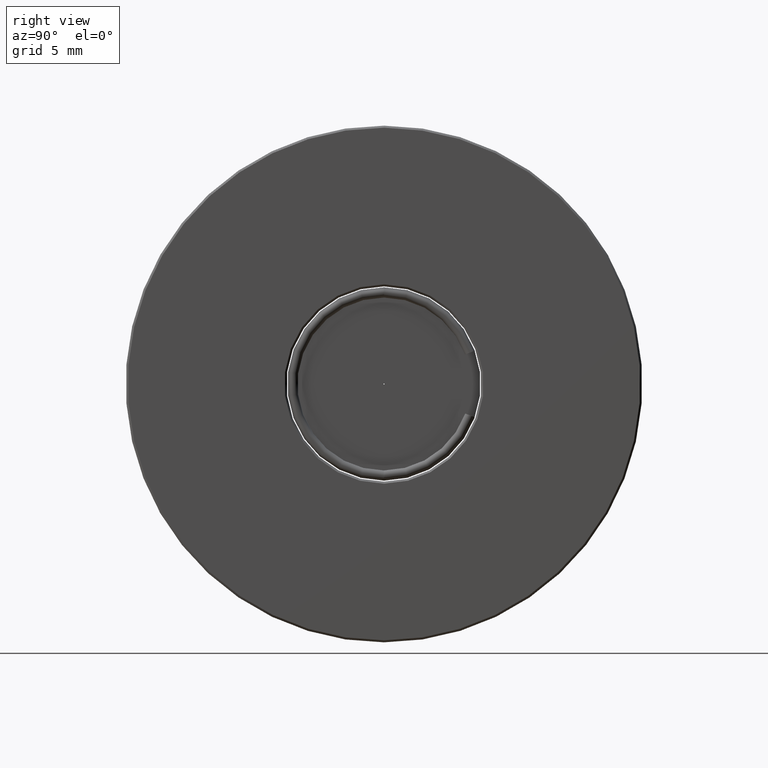
[diagram: clean part render]
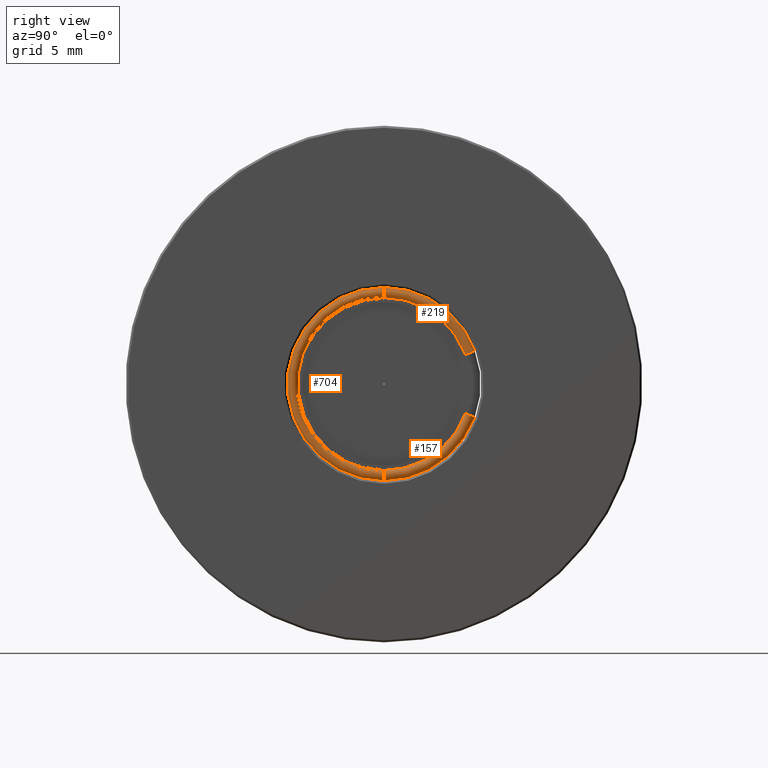
[diagram: same view with one multi-face feature highlighted, each face labeled with its STEP entity id]
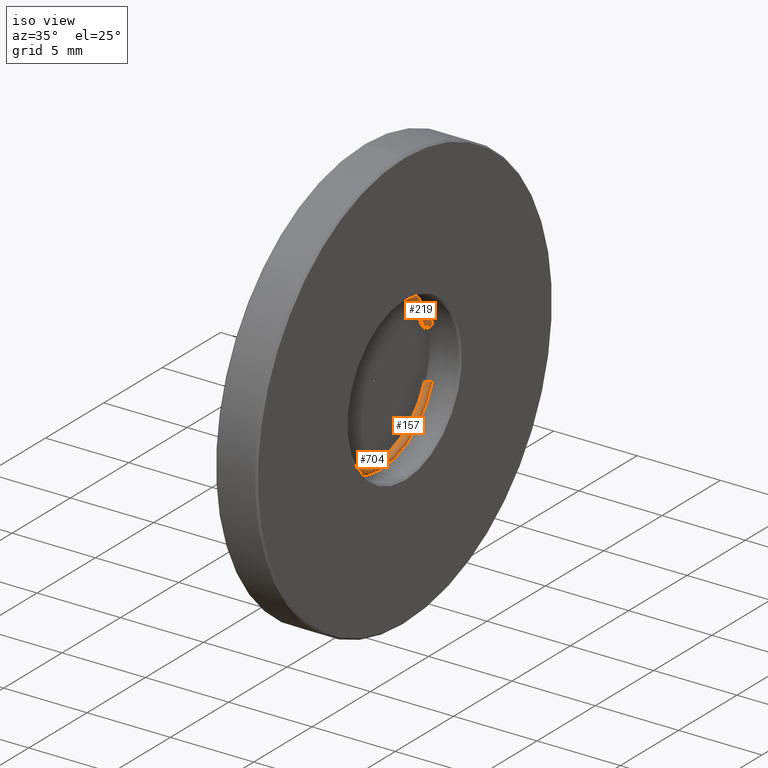
[diagram: same view with one multi-face feature highlighted, each face labeled with its STEP entity id]
A machine part, right view. The highlighted faces form ONE feature: a constant-radius fillet chain: 3 tangent blend faces with common blend radius 0.25 mm. The faces share edges in the B-rep.
A second angle (iso view) of the same feature is appended — it is thin or edge-on in the first view.
Their STEP definitions:
[1] entity #704 (Torus):
#5 = CARTESIAN_POINT ( 'NONE',  ( -4.034863851253239986, 1.436758841085141514, 25.39999999999998437 ) ) ;
#18 = CARTESIAN_POINT ( 'NONE',  ( -4.034863851253239986, 1.436758841085141514, 25.39999999999998437 ) ) ;
#31 = AXIS2_PLACEMENT_3D ( 'NONE', #18, #575, #694 ) ;
#39 = ORIENTED_EDGE ( 'NONE', *, *, #246, .T. ) ;
#70 = DIRECTION ( 'NONE',  ( 3.061276722312011406E-15, 1.000000000000000000, 0.0000000000000000000 ) ) ;
#83 = VERTEX_POINT ( 'NONE', #330 ) ;
#98 = DIRECTION ( 'NONE',  ( 2.921639538487253472E-15, 1.000000000000000000, 0.0000000000000000000 ) ) ;
#105 = VERTEX_POINT ( 'NONE', #568 ) ;
#114 = ORIENTED_EDGE ( 'NONE', *, *, #624, .F. ) ;
#131 = CIRCLE ( 'NONE', #606, 4.750000000000000888 ) ;
#215 = CARTESIAN_POINT ( 'NONE',  ( -4.034863851253246203, 1.436758840772518919, 20.64999999999998437 ) ) ;
#223 = ORIENTED_EDGE ( 'NONE', *, *, #429, .F. ) ;
#238 = DIRECTION ( 'NONE',  ( 2.997602166400237614E-15, 1.000000000000000000, -6.581539236536173561E-11 ) ) ;
#246 = EDGE_CURVE ( 'NONE', #105, #780, #131, .T. ) ;
#249 = CIRCLE ( 'NONE', #318, 0.2500000000000002220 ) ;
#255 = DIRECTION ( 'NONE',  ( 1.000000000000000000, -2.997602166487921476E-15, -1.332267629309052594E-15 ) ) ;
#272 = DIRECTION ( 'NONE',  ( 1.000000000000000000, -2.997602166487921476E-15, -1.332267629309052594E-15 ) ) ;
#318 = AXIS2_PLACEMENT_3D ( 'NONE', #372, #238, #799 ) ;
#330 = CARTESIAN_POINT ( 'NONE',  ( -4.034863851253237321, 1.436758841364856876, 29.64999999999998437 ) ) ;
#345 = FACE_OUTER_BOUND ( 'NONE', #689, .T. ) ;
#366 = TOROIDAL_SURFACE ( 'NONE', #31, 4.500000000000001776, 0.2499999999999994726 ) ;
#372 = CARTESIAN_POINT ( 'NONE',  ( -4.034863851253245315, 1.436758841381310825, 29.89999999999998437 ) ) ;
#429 = EDGE_CURVE ( 'NONE', #105, #83, #249, .T. ) ;
#453 = ORIENTED_EDGE ( 'NONE', *, *, #459, .T. ) ;
#459 = EDGE_CURVE ( 'NONE', #780, #465, #641, .T. ) ;
#465 = VERTEX_POINT ( 'NONE', #668 ) ;
#531 = CIRCLE ( 'NONE', #533, 4.250000000000001776 ) ;
#533 = AXIS2_PLACEMENT_3D ( 'NONE', #5, #255, #70 ) ;
#564 = AXIS2_PLACEMENT_3D ( 'NONE', #608, #737, #672 ) ;
#568 = CARTESIAN_POINT ( 'NONE',  ( -4.034863851253234657, 1.436758841397764552, 30.14999999999998437 ) ) ;
#575 = DIRECTION ( 'NONE',  ( 1.000000000000000000, -2.997602166487921476E-15, -1.332267629309052594E-15 ) ) ;
#606 = AXIS2_PLACEMENT_3D ( 'NONE', #711, #272, #98 ) ;
#608 = CARTESIAN_POINT ( 'NONE',  ( -4.034863851253234657, 1.436758840788972647, 20.89999999999998437 ) ) ;
#624 = EDGE_CURVE ( 'NONE', #83, #465, #531, .T. ) ;
#641 = CIRCLE ( 'NONE', #564, 0.2500000000000002220 ) ;
#668 = CARTESIAN_POINT ( 'NONE',  ( -4.034863851253239986, 1.436758840805426596, 21.14999999999998437 ) ) ;
#672 = DIRECTION ( 'NONE',  ( 0.0000000000000000000, -6.581540867855999654E-11, -1.000000000000000000 ) ) ;
#689 = EDGE_LOOP ( 'NONE', ( #223, #39, #453, #114 ) ) ;
#694 = DIRECTION ( 'NONE',  ( -1.332267629506340790E-15, -6.581527172670668233E-11, -1.000000000000000000 ) ) ;
#704 = ADVANCED_FACE ( 'NONE', ( #345 ), #366, .T. ) ;
#711 = CARTESIAN_POINT ( 'NONE',  ( -4.034863851253239986, 1.436758841085141514, 25.39999999999998437 ) ) ;
#737 = DIRECTION ( 'NONE',  ( -2.997602166400238009E-15, -1.000000000000000000, 6.581526990068181500E-11 ) ) ;
#780 = VERTEX_POINT ( 'NONE', #215 ) ;
#799 = DIRECTION ( 'NONE',  ( 0.0000000000000000000, 6.581540867855999654E-11, 1.000000000000000000 ) ) ;
[2] entity #219 (Torus):
#44 = CARTESIAN_POINT ( 'NONE',  ( -4.034863851253239986, 1.436758841085141514, 25.39999999999998437 ) ) ;
#73 = AXIS2_PLACEMENT_3D ( 'NONE', #646, #413, #404 ) ;
#83 = VERTEX_POINT ( 'NONE', #330 ) ;
#105 = VERTEX_POINT ( 'NONE', #568 ) ;
#110 = EDGE_CURVE ( 'NONE', #635, #408, #190, .T. ) ;
#143 = CARTESIAN_POINT ( 'NONE',  ( -4.034863851253261302, 5.665375634723053722, 26.93909064468709857 ) ) ;
#154 = CARTESIAN_POINT ( 'NONE',  ( -4.034863851253239986, 1.436758841085141514, 25.39999999999998437 ) ) ;
#155 = TOROIDAL_SURFACE ( 'NONE', #285, 4.500000000000001776, 0.2499999999999994726 ) ;
#163 = CIRCLE ( 'NONE', #73, 4.750000000000000888 ) ;
#166 = AXIS2_PLACEMENT_3D ( 'NONE', #44, #421, #544 ) ;
#176 = FACE_OUTER_BOUND ( 'NONE', #250, .T. ) ;
#190 = CIRCLE ( 'NONE', #257, 0.2500000000000000000 ) ;
#219 = ADVANCED_FACE ( 'NONE', ( #176 ), #155, .T. ) ;
#238 = DIRECTION ( 'NONE',  ( 2.997602166400237614E-15, 1.000000000000000000, -6.581539236536173561E-11 ) ) ;
#249 = CIRCLE ( 'NONE', #318, 0.2500000000000002220 ) ;
#250 = EDGE_LOOP ( 'NONE', ( #311, #683, #673, #256 ) ) ;
#256 = ORIENTED_EDGE ( 'NONE', *, *, #361, .F. ) ;
#257 = AXIS2_PLACEMENT_3D ( 'NONE', #143, #753, #520 ) ;
#285 = AXIS2_PLACEMENT_3D ( 'NONE', #154, #341, #340 ) ;
#297 = CARTESIAN_POINT ( 'NONE',  ( -4.034863851253226663, 5.430452479520951670, 26.85358560887114621 ) ) ;
#311 = ORIENTED_EDGE ( 'NONE', *, *, #110, .F. ) ;
#318 = AXIS2_PLACEMENT_3D ( 'NONE', #372, #238, #799 ) ;
#330 = CARTESIAN_POINT ( 'NONE',  ( -4.034863851253237321, 1.436758841364856876, 29.64999999999998437 ) ) ;
#340 = DIRECTION ( 'NONE',  ( -1.332267629506340790E-15, -6.581527172670668233E-11, -1.000000000000000000 ) ) ;
#341 = DIRECTION ( 'NONE',  ( 1.000000000000000000, -2.997602166487921476E-15, -1.332267629309052594E-15 ) ) ;
#361 = EDGE_CURVE ( 'NONE', #408, #83, #451, .T. ) ;
#372 = CARTESIAN_POINT ( 'NONE',  ( -4.034863851253245315, 1.436758841381310825, 29.89999999999998437 ) ) ;
#404 = DIRECTION ( 'NONE',  ( 2.921639538487253472E-15, 1.000000000000000000, 0.0000000000000000000 ) ) ;
#408 = VERTEX_POINT ( 'NONE', #297 ) ;
#413 = DIRECTION ( 'NONE',  ( 1.000000000000000000, -2.997602166487921476E-15, -1.332267629309052594E-15 ) ) ;
#421 = DIRECTION ( 'NONE',  ( 1.000000000000000000, -2.997602166487921476E-15, -1.332267629309052594E-15 ) ) ;
#429 = EDGE_CURVE ( 'NONE', #105, #83, #249, .T. ) ;
#439 = CARTESIAN_POINT ( 'NONE',  ( -4.034863851253225775, 5.900298789925161103, 27.02459568050305094 ) ) ;
#451 = CIRCLE ( 'NONE', #166, 4.250000000000001776 ) ;
#520 = DIRECTION ( 'NONE',  ( 3.469446951953614189E-15, -0.9396926208084209753, -0.3420201432638159122 ) ) ;
#544 = DIRECTION ( 'NONE',  ( 3.061276722312011406E-15, 1.000000000000000000, 0.0000000000000000000 ) ) ;
#568 = CARTESIAN_POINT ( 'NONE',  ( -4.034863851253234657, 1.436758841397764552, 30.14999999999998437 ) ) ;
#635 = VERTEX_POINT ( 'NONE', #439 ) ;
#646 = CARTESIAN_POINT ( 'NONE',  ( -4.034863851253239986, 1.436758841085141514, 25.39999999999998437 ) ) ;
#673 = ORIENTED_EDGE ( 'NONE', *, *, #429, .T. ) ;
#683 = ORIENTED_EDGE ( 'NONE', *, *, #729, .T. ) ;
#729 = EDGE_CURVE ( 'NONE', #635, #105, #163, .T. ) ;
#753 = DIRECTION ( 'NONE',  ( -1.054662389422715826E-17, 0.3420201432638126371, -0.9396926208084220855 ) ) ;
#799 = DIRECTION ( 'NONE',  ( 0.0000000000000000000, 6.581540867855999654E-11, 1.000000000000000000 ) ) ;
[3] entity #157 (Torus):
#9 = AXIS2_PLACEMENT_3D ( 'NONE', #203, #199, #515 ) ;
#35 = CIRCLE ( 'NONE', #755, 0.2500000000000002220 ) ;
#42 = DIRECTION ( 'NONE',  ( 1.000000000000000000, -2.997602166487921476E-15, -1.332267629309052594E-15 ) ) ;
#96 = ORIENTED_EDGE ( 'NONE', *, *, #459, .F. ) ;
#126 = EDGE_CURVE ( 'NONE', #156, #159, #35, .T. ) ;
#156 = VERTEX_POINT ( 'NONE', #634 ) ;
#157 = ADVANCED_FACE ( 'NONE', ( #392 ), #560, .T. ) ;
#159 = VERTEX_POINT ( 'NONE', #690 ) ;
#177 = DIRECTION ( 'NONE',  ( 2.921639538487253472E-15, 1.000000000000000000, 0.0000000000000000000 ) ) ;
#178 = CARTESIAN_POINT ( 'NONE',  ( -4.034863851253239986, 1.436758841085141514, 25.39999999999998437 ) ) ;
#199 = DIRECTION ( 'NONE',  ( 1.000000000000000000, -2.997602166487921476E-15, -1.332267629309052594E-15 ) ) ;
#203 = CARTESIAN_POINT ( 'NONE',  ( -4.034863851253239986, 1.436758841085141514, 25.39999999999998437 ) ) ;
#215 = CARTESIAN_POINT ( 'NONE',  ( -4.034863851253246203, 1.436758840772518919, 20.64999999999998437 ) ) ;
#244 = EDGE_LOOP ( 'NONE', ( #96, #545, #759, #371 ) ) ;
#287 = CARTESIAN_POINT ( 'NONE',  ( -4.034863851253239986, 1.436758841085141514, 25.39999999999998437 ) ) ;
#302 = AXIS2_PLACEMENT_3D ( 'NONE', #178, #42, #177 ) ;
#337 = EDGE_CURVE ( 'NONE', #780, #156, #615, .T. ) ;
#371 = ORIENTED_EDGE ( 'NONE', *, *, #772, .F. ) ;
#384 = CARTESIAN_POINT ( 'NONE',  ( -4.034863851253261302, 5.665375634520459336, 23.86090935475617059 ) ) ;
#392 = FACE_OUTER_BOUND ( 'NONE', #244, .T. ) ;
#459 = EDGE_CURVE ( 'NONE', #780, #465, #641, .T. ) ;
#461 = AXIS2_PLACEMENT_3D ( 'NONE', #287, #783, #532 ) ;
#465 = VERTEX_POINT ( 'NONE', #668 ) ;
#482 = CIRCLE ( 'NONE', #461, 4.250000000000001776 ) ;
#505 = DIRECTION ( 'NONE',  ( 2.305737067885818465E-15, -0.3420201433875043051, -0.9396926207634020978 ) ) ;
#515 = DIRECTION ( 'NONE',  ( -1.332267629506340790E-15, -6.581527172670668233E-11, -1.000000000000000000 ) ) ;
#532 = DIRECTION ( 'NONE',  ( 3.061276722312011406E-15, 1.000000000000000000, 0.0000000000000000000 ) ) ;
#545 = ORIENTED_EDGE ( 'NONE', *, *, #337, .T. ) ;
#560 = TOROIDAL_SURFACE ( 'NONE', #9, 4.500000000000001776, 0.2499999999999994726 ) ;
#564 = AXIS2_PLACEMENT_3D ( 'NONE', #608, #737, #672 ) ;
#573 = DIRECTION ( 'NONE',  ( 3.469446951953611033E-15, -0.9396926207634005435, 0.3420201433875083574 ) ) ;
#608 = CARTESIAN_POINT ( 'NONE',  ( -4.034863851253234657, 1.436758840788972647, 20.89999999999998437 ) ) ;
#615 = CIRCLE ( 'NONE', #302, 4.750000000000000888 ) ;
#634 = CARTESIAN_POINT ( 'NONE',  ( -4.034863851253229328, 5.900298789711298397, 23.77540431890929895 ) ) ;
#641 = CIRCLE ( 'NONE', #564, 0.2500000000000002220 ) ;
#668 = CARTESIAN_POINT ( 'NONE',  ( -4.034863851253239986, 1.436758840805426596, 21.14999999999998437 ) ) ;
#672 = DIRECTION ( 'NONE',  ( 0.0000000000000000000, -6.581540867855999654E-11, -1.000000000000000000 ) ) ;
#690 = CARTESIAN_POINT ( 'NONE',  ( -4.034863851253229328, 5.430452479329598070, 23.94641439060304933 ) ) ;
#737 = DIRECTION ( 'NONE',  ( -2.997602166400238009E-15, -1.000000000000000000, 6.581526990068181500E-11 ) ) ;
#755 = AXIS2_PLACEMENT_3D ( 'NONE', #384, #505, #573 ) ;
#759 = ORIENTED_EDGE ( 'NONE', *, *, #126, .T. ) ;
#772 = EDGE_CURVE ( 'NONE', #465, #159, #482, .T. ) ;
#780 = VERTEX_POINT ( 'NONE', #215 ) ;
#783 = DIRECTION ( 'NONE',  ( 1.000000000000000000, -2.997602166487921476E-15, -1.332267629309052594E-15 ) ) ;